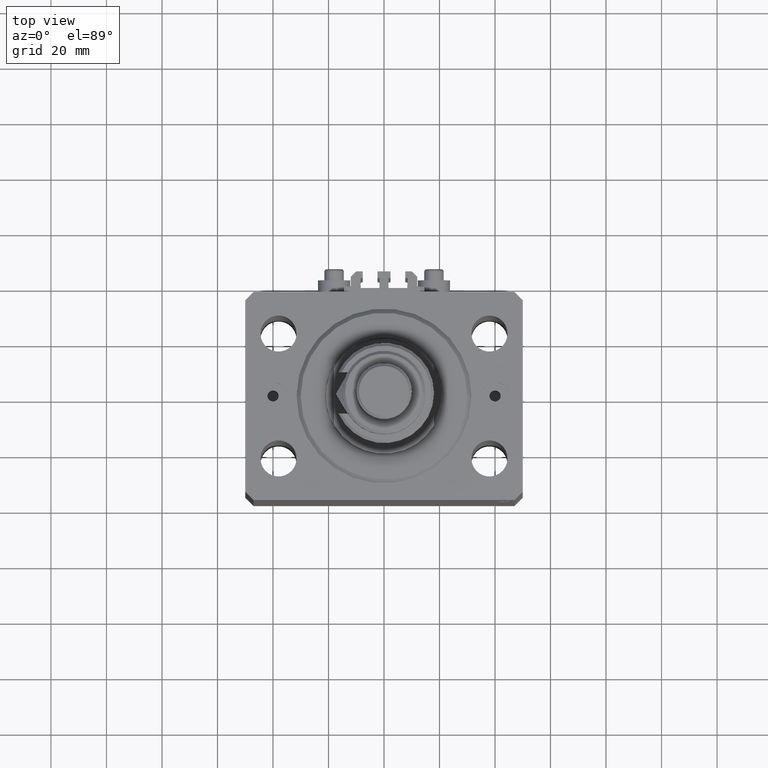
[diagram: clean part render]
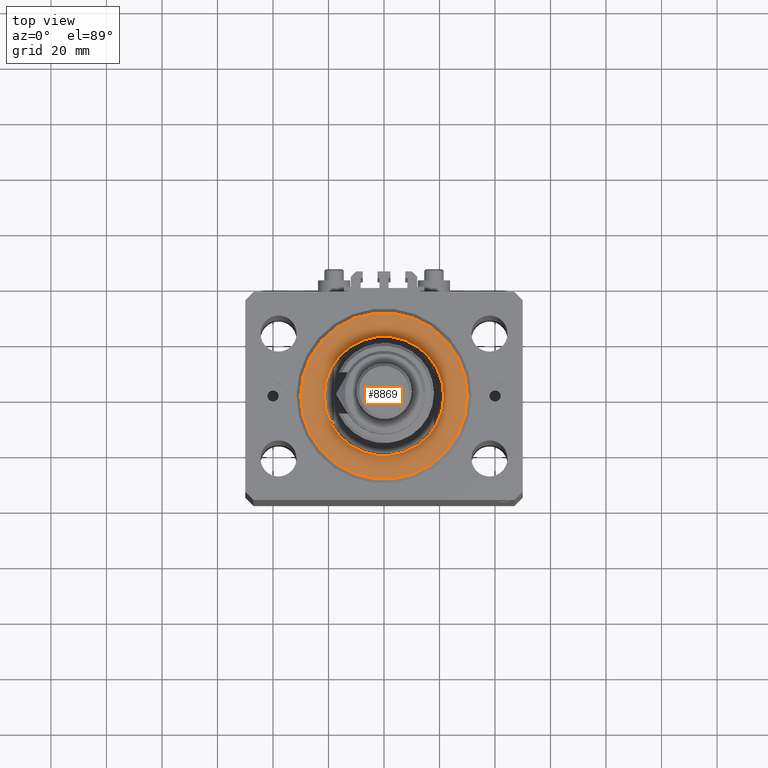
[diagram: same view with one face highlighted and labeled with its STEP entity id]
A machine part, top view. The second image highlights one B-rep face of the part: STEP entity #8869.
In plain terms, the highlighted planar face has unit normal (0, 0, -1).
Its self-contained STEP definition (entity closure, byte-faithful):
#1044 = EDGE_CURVE ( 'NONE', #13989, #37425, #32171, .T. ) ;
#1241 = EDGE_CURVE ( 'NONE', #46648, #29531, #31335, .T. ) ;
#1315 = EDGE_CURVE ( 'NONE', #37425, #13989, #8679, .T. ) ;
#1409 = CARTESIAN_POINT ( 'NONE',  ( 0.000000000000000000, 0.000000000000000000, 0.000000000000000000 ) ) ;
#4956 = DIRECTION ( 'NONE',  ( 1.000000000000000000, 0.000000000000000000, 0.000000000000000000 ) ) ;
#5860 = FACE_BOUND ( 'NONE', #28644, .T. ) ;
#6113 = PLANE ( 'NONE',  #46994 ) ;
#8679 = CIRCLE ( 'NONE', #26517, 30.00000000000002132 ) ;
#8869 = ADVANCED_FACE ( 'NONE', ( #5860, #44118 ), #6113, .F. ) ;
#10091 = CARTESIAN_POINT ( 'NONE',  ( 0.000000000000000000, 0.000000000000000000, 0.000000000000000000 ) ) ;
#12657 = CARTESIAN_POINT ( 'NONE',  ( 0.000000000000000000, 0.000000000000000000, 0.000000000000000000 ) ) ;
#13477 = CIRCLE ( 'NONE', #40967, 21.50000000000000000 ) ;
#13989 = VERTEX_POINT ( 'NONE', #44988 ) ;
#16335 = CARTESIAN_POINT ( 'NONE',  ( 21.50000000000000000, 0.000000000000000000, -2.168404344971008868E-16 ) ) ;
#16477 = DIRECTION ( 'NONE',  ( 1.000000000000000000, 0.000000000000000000, 0.000000000000000000 ) ) ;
#17957 = DIRECTION ( 'NONE',  ( -0.000000000000000000, -0.000000000000000000, -1.000000000000000000 ) ) ;
#18904 = DIRECTION ( 'NONE',  ( 1.000000000000000000, 0.000000000000000000, 0.000000000000000000 ) ) ;
#21673 = AXIS2_PLACEMENT_3D ( 'NONE', #12657, #39776, #16477 ) ;
#24083 = AXIS2_PLACEMENT_3D ( 'NONE', #33190, #48624, #44837 ) ;
#24196 = EDGE_CURVE ( 'NONE', #29531, #46648, #13477, .T. ) ;
#25021 = EDGE_LOOP ( 'NONE', ( #32453, #43588 ) ) ;
#26230 = CARTESIAN_POINT ( 'NONE',  ( -30.00000000000002132, 3.765788907378112117E-15, 0.000000000000000000 ) ) ;
#26517 = AXIS2_PLACEMENT_3D ( 'NONE', #10091, #17957, #18904 ) ;
#27073 = CARTESIAN_POINT ( 'NONE',  ( -21.50000000000000000, 2.632990618166809630E-15, -2.168404344971008868E-16 ) ) ;
#28644 = EDGE_LOOP ( 'NONE', ( #31700, #48188 ) ) ;
#29201 = CARTESIAN_POINT ( 'NONE',  ( 0.000000000000000000, 0.000000000000000000, 0.000000000000000000 ) ) ;
#29452 = DIRECTION ( 'NONE',  ( 0.000000000000000000, 0.000000000000000000, 1.000000000000000000 ) ) ;
#29531 = VERTEX_POINT ( 'NONE', #16335 ) ;
#31335 = CIRCLE ( 'NONE', #24083, 21.50000000000000000 ) ;
#31700 = ORIENTED_EDGE ( 'NONE', *, *, #24196, .T. ) ;
#32171 = CIRCLE ( 'NONE', #21673, 30.00000000000002132 ) ;
#32453 = ORIENTED_EDGE ( 'NONE', *, *, #1044, .T. ) ;
#33190 = CARTESIAN_POINT ( 'NONE',  ( 0.000000000000000000, 0.000000000000000000, 0.000000000000000000 ) ) ;
#37425 = VERTEX_POINT ( 'NONE', #26230 ) ;
#39657 = DIRECTION ( 'NONE',  ( 0.000000000000000000, 0.000000000000000000, 1.000000000000000000 ) ) ;
#39776 = DIRECTION ( 'NONE',  ( -0.000000000000000000, -0.000000000000000000, -1.000000000000000000 ) ) ;
#40967 = AXIS2_PLACEMENT_3D ( 'NONE', #1409, #39657, #4956 ) ;
#43588 = ORIENTED_EDGE ( 'NONE', *, *, #1315, .T. ) ;
#44118 = FACE_OUTER_BOUND ( 'NONE', #25021, .T. ) ;
#44837 = DIRECTION ( 'NONE',  ( 1.000000000000000000, 0.000000000000000000, 0.000000000000000000 ) ) ;
#44887 = DIRECTION ( 'NONE',  ( 1.000000000000000000, 0.000000000000000000, -0.000000000000000000 ) ) ;
#44988 = CARTESIAN_POINT ( 'NONE',  ( 30.00000000000002132, 0.000000000000000000, 0.000000000000000000 ) ) ;
#46648 = VERTEX_POINT ( 'NONE', #27073 ) ;
#46994 = AXIS2_PLACEMENT_3D ( 'NONE', #29201, #29452, #44887 ) ;
#48188 = ORIENTED_EDGE ( 'NONE', *, *, #1241, .T. ) ;
#48624 = DIRECTION ( 'NONE',  ( 0.000000000000000000, 0.000000000000000000, 1.000000000000000000 ) ) ;